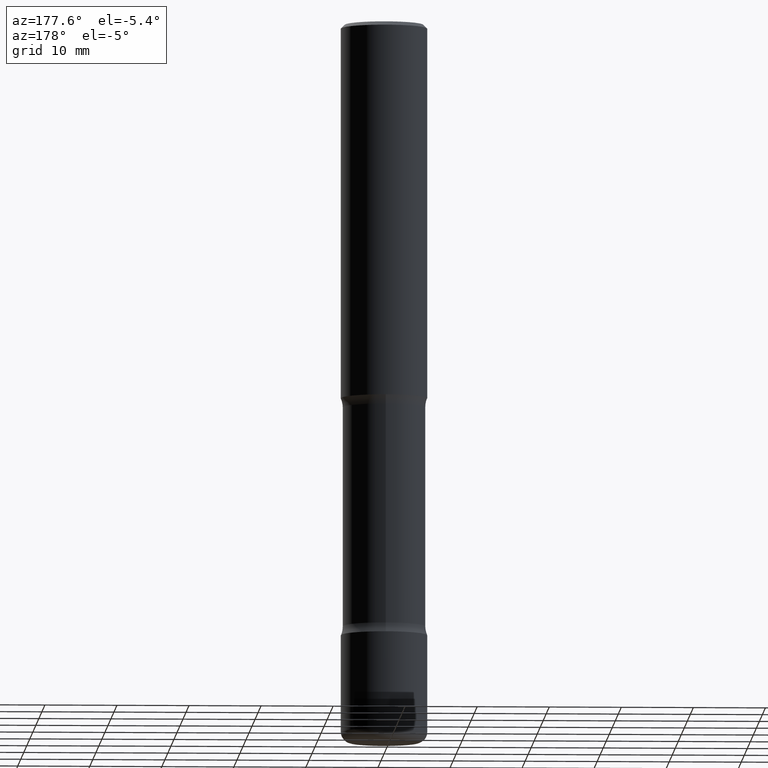
[diagram: clean part render]
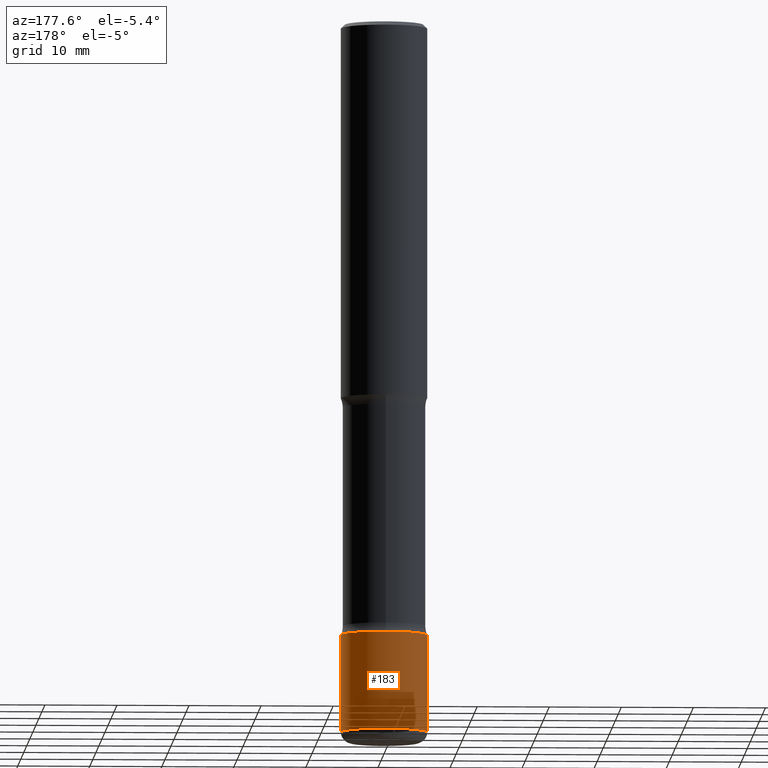
[diagram: same view with one face highlighted and labeled with its STEP entity id]
A machine part, auxiliary view. The second image highlights one B-rep face of the part: STEP entity #183.
In plain terms, the highlighted cylindrical surface (partial cylindrical patch) has radius 5.9995 mm, axis along (-0, 0, 1).
Its self-contained STEP definition (entity closure, byte-faithful):
#4 = EDGE_CURVE ( 'NONE', #549, #187, #442, .T. ) ;
#18 = DIRECTION ( 'NONE',  ( -2.445468806185136597E-29, 3.491481338843145583E-15, 1.000000000000000000 ) ) ;
#41 = EDGE_LOOP ( 'NONE', ( #523, #126, #221, #256 ) ) ;
#45 = AXIS2_PLACEMENT_3D ( 'NONE', #544, #419, #205 ) ;
#90 = VERTEX_POINT ( 'NONE', #331 ) ;
#97 = CARTESIAN_POINT ( 'NONE',  ( 0.2362000000000004651, -1.649375784469499483E-15, 1.151752954443002330E-29 ) ) ;
#101 = AXIS2_PLACEMENT_3D ( 'NONE', #328, #18, #193 ) ;
#107 = EDGE_CURVE ( 'NONE', #90, #487, #371, .T. ) ;
#113 = CARTESIAN_POINT ( 'NONE',  ( 0.2362000000000004096, -1.518899126836933270E-14, -3.877900000000000347 ) ) ;
#118 = VECTOR ( 'NONE', #483, 39.37007874015748143 ) ;
#120 = CIRCLE ( 'NONE', #45, 0.2362000000000005762 ) ;
#126 = ORIENTED_EDGE ( 'NONE', *, *, #107, .T. ) ;
#139 = EDGE_CURVE ( 'NONE', #187, #487, #401, .T. ) ;
#144 = EDGE_CURVE ( 'NONE', #549, #90, #120, .T. ) ;
#145 = FACE_OUTER_BOUND ( 'NONE', #41, .T. ) ;
#148 = CARTESIAN_POINT ( 'NONE',  ( -0.2362000000000004651, 1.678301941865359944E-15, -1.161852468318210999E-29 ) ) ;
#151 = CYLINDRICAL_SURFACE ( 'NONE', #101, 0.2362000000000004651 ) ;
#183 = ADVANCED_FACE ( 'NONE', ( #145 ), #151, .T. ) ;
#187 = VERTEX_POINT ( 'NONE', #502 ) ;
#193 = DIRECTION ( 'NONE',  ( 1.000000000000000000, -6.982962677686266711E-15, 4.876176775795935793E-29 ) ) ;
#205 = DIRECTION ( 'NONE',  ( 1.000000000000000000, -6.982962677686263555E-15, 0.000000000000000000 ) ) ;
#221 = ORIENTED_EDGE ( 'NONE', *, *, #139, .F. ) ;
#237 = DIRECTION ( 'NONE',  ( -2.445468806185136597E-29, 3.491481338843145583E-15, 1.000000000000000000 ) ) ;
#244 = CARTESIAN_POINT ( 'NONE',  ( 8.183516813017940998E-29, -1.168389315230470136E-14, -3.346399999999999597 ) ) ;
#256 = ORIENTED_EDGE ( 'NONE', *, *, #4, .F. ) ;
#316 = CARTESIAN_POINT ( 'NONE',  ( -0.2362000000000004096, -1.093345237623690843E-14, -3.346399999999999597 ) ) ;
#328 = CARTESIAN_POINT ( 'NONE',  ( 0.000000000000000000, 0.000000000000000000, 0.000000000000000000 ) ) ;
#331 = CARTESIAN_POINT ( 'NONE',  ( -0.2362000000000004096, -1.186131354203447347E-14, -3.877900000000000347 ) ) ;
#355 = VECTOR ( 'NONE', #368, 39.37007874015748143 ) ;
#365 = DIRECTION ( 'NONE',  ( 1.000000000000000000, -6.982962677686268288E-15, 0.000000000000000000 ) ) ;
#368 = DIRECTION ( 'NONE',  ( -2.445468806185136877E-29, 3.491481338843145188E-15, 1.000000000000000000 ) ) ;
#371 = LINE ( 'NONE', #148, #355 ) ;
#401 = CIRCLE ( 'NONE', #520, 0.2362000000000004096 ) ;
#419 = DIRECTION ( 'NONE',  ( -2.445468806185136597E-29, 3.491481338843145583E-15, 1.000000000000000000 ) ) ;
#442 = LINE ( 'NONE', #97, #118 ) ;
#483 = DIRECTION ( 'NONE',  ( -2.445468806185136877E-29, 3.491481338843145188E-15, 1.000000000000000000 ) ) ;
#487 = VERTEX_POINT ( 'NONE', #316 ) ;
#502 = CARTESIAN_POINT ( 'NONE',  ( 0.2362000000000004096, -1.333326893677419946E-14, -3.346399999999999597 ) ) ;
#520 = AXIS2_PLACEMENT_3D ( 'NONE', #244, #237, #365 ) ;
#523 = ORIENTED_EDGE ( 'NONE', *, *, #144, .T. ) ;
#544 = CARTESIAN_POINT ( 'NONE',  ( 9.483283483505341216E-29, -1.353961548389983459E-14, -3.877900000000000347 ) ) ;
#549 = VERTEX_POINT ( 'NONE', #113 ) ;